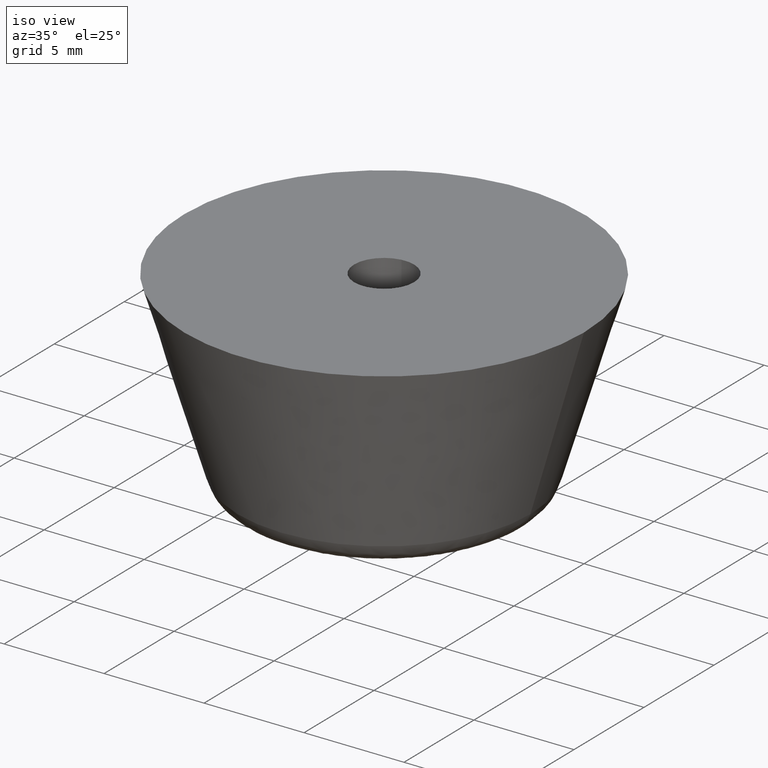
[diagram: clean part render]
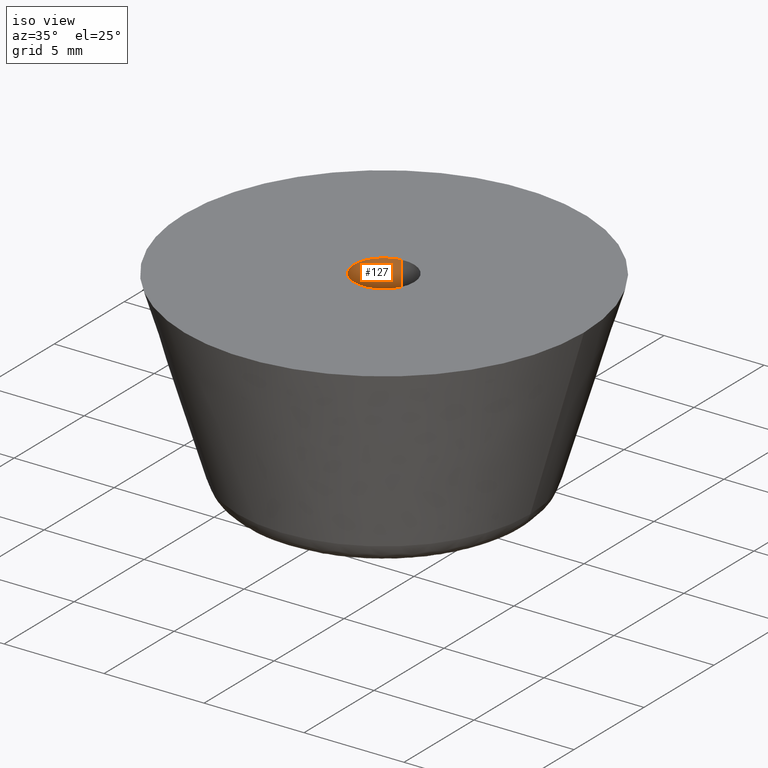
[diagram: same view with one face highlighted and labeled with its STEP entity id]
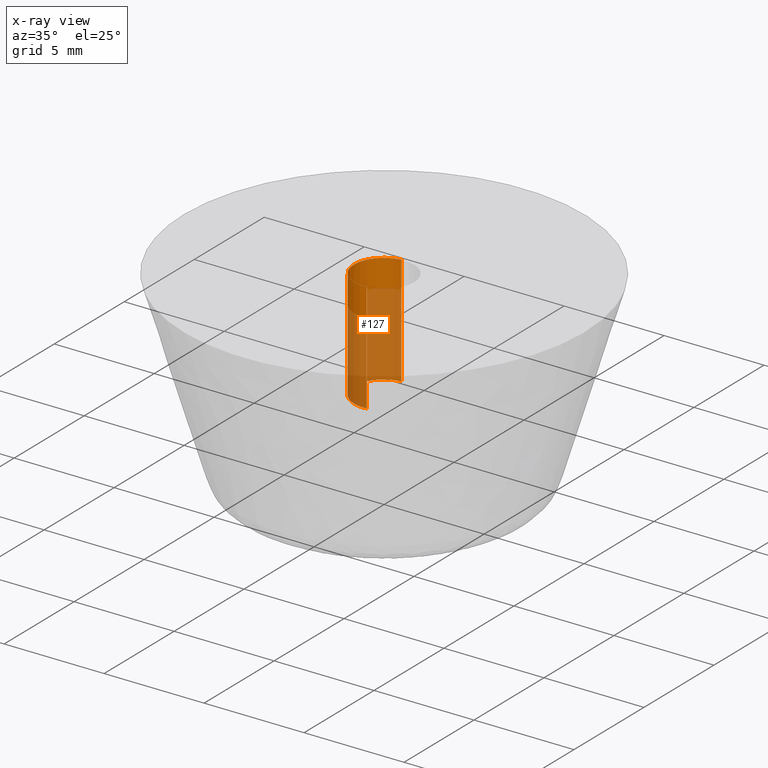
[diagram: x-ray of the same camera — body ghosted, the highlighted face saturated]
A machine part, iso view. The second image highlights one B-rep face of the part: STEP entity #127.
The next image is the same camera in x-ray: the body ghosted, the highlighted face saturated — about 71% of this face is hidden behind the body in this view.
In plain terms, the highlighted cylindrical surface (partial cylindrical patch) has radius 1.5 mm, axis along (-0, -0, -1).
Its self-contained STEP definition (entity closure, byte-faithful):
#127=ADVANCED_FACE('',(#289),#288,.F.);
#288=CYLINDRICAL_SURFACE('',#476,1.50000000000E+000);
#289=FACE_OUTER_BOUND('',#477,.T.);
#473=CARTESIAN_POINT('',(-3.44921326432E-016,3.41449444882E-016,7.25000000000E+000));
#474=DIRECTION('',(-2.54002805846E-014,-3.61549565237E-015,-1.00000000000E+000));
#475=DIRECTION('',(-1.18034234657E-001,9.93009526364E-001,-5.92118946455E-016));
#476=AXIS2_PLACEMENT_3D('',#473,#474,#475);
#477=EDGE_LOOP('',(#562,#563,#564,#565));
#562=ORIENTED_EDGE('',*,*,#610,.T.);
#563=ORIENTED_EDGE('',*,*,#618,.F.);
#564=ORIENTED_EDGE('',*,*,#602,.F.);
#565=ORIENTED_EDGE('',*,*,#619,.T.);
#602=EDGE_CURVE('',#760,#761,#762,.T.);
#610=EDGE_CURVE('',#816,#817,#818,.T.);
#618=EDGE_CURVE('',#761,#817,#868,.T.);
#619=EDGE_CURVE('',#760,#816,#874,.T.);
#760=VERTEX_POINT('',#992);
#761=VERTEX_POINT('',#993);
#762=CIRCLE('',#997,1.50000000000E+000);
#816=VERTEX_POINT('',#1032);
#817=VERTEX_POINT('',#1033);
#818=CIRCLE('',#1037,1.50000000000E+000);
#868=(BOUNDED_CURVE() B_SPLINE_CURVE(1,(#1063,#1064),.UNSPECIFIED.,.F.,.F.) B_SPLINE_CURVE_WITH_KNOTS((2,2),(8.33333383004E-002,9.16666669188E-001),.UNSPECIFIED.) CURVE() GEOMETRIC_REPRESENTATION_ITEM() RATIONAL_B_SPLINE_CURVE((1.00000000000E+000,1.00000000000E+000)) REPRESENTATION_ITEM('') );
#874=(BOUNDED_CURVE() B_SPLINE_CURVE(1,(#1065,#1066),.UNSPECIFIED.,.F.,.F.) B_SPLINE_CURVE_WITH_KNOTS((2,2),(8.33333333333E-002,9.16666666667E-001),.UNSPECIFIED.) CURVE() GEOMETRIC_REPRESENTATION_ITEM() RATIONAL_B_SPLINE_CURVE((7.50000000000E-001,7.50000000000E-001)) REPRESENTATION_ITEM('') );
#992=CARTESIAN_POINT('',(1.77050807279E-001,-1.48951435429E+000,1.00000000000E+001));
#993=CARTESIAN_POINT('',(-1.77051351985E-001,1.48951428955E+000,1.00000000000E+001));
#994=CARTESIAN_POINT('',(1.22124532709E-015,6.66133814775E-016,1.00000000000E+001));
#995=DIRECTION('',(-2.84217094304E-014,-3.36055386708E-015,-1.00000000000E+000));
#996=DIRECTION('',(1.18033871519E-001,-9.93009569528E-001,-1.76622503478E-017));
#997=AXIS2_PLACEMENT_3D('',#994,#995,#996);
#1032=CARTESIAN_POINT('',(1.77308843491E-001,-1.48948366021E+000,4.50000000000E+000));
#1033=CARTESIAN_POINT('',(-1.77308843491E-001,1.48948366021E+000,4.50000000000E+000));
#1034=CARTESIAN_POINT('',(1.33226762955E-015,6.66133814775E-016,4.50000000000E+000));
#1035=DIRECTION('',(-1.93904183595E-015,-1.42305829796E-015,-1.00000000000E+000));
#1036=DIRECTION('',(-1.18205895660E-001,9.92989106804E-001,-1.18387521128E-015));
#1037=AXIS2_PLACEMENT_3D('',#1034,#1035,#1036);
#1063=CARTESIAN_POINT('',(-1.77051351985E-001,1.48951428955E+000,9.99999996722E+000));
#1064=CARTESIAN_POINT('',(-1.77051351986E-001,1.48951428955E+000,4.49999998336E+000));
#1065=CARTESIAN_POINT('',(1.77051351986E-001,-1.48951428955E+000,1.00000000000E+001));
#1066=CARTESIAN_POINT('',(1.77051351985E-001,-1.48951428955E+000,4.50000000000E+000));